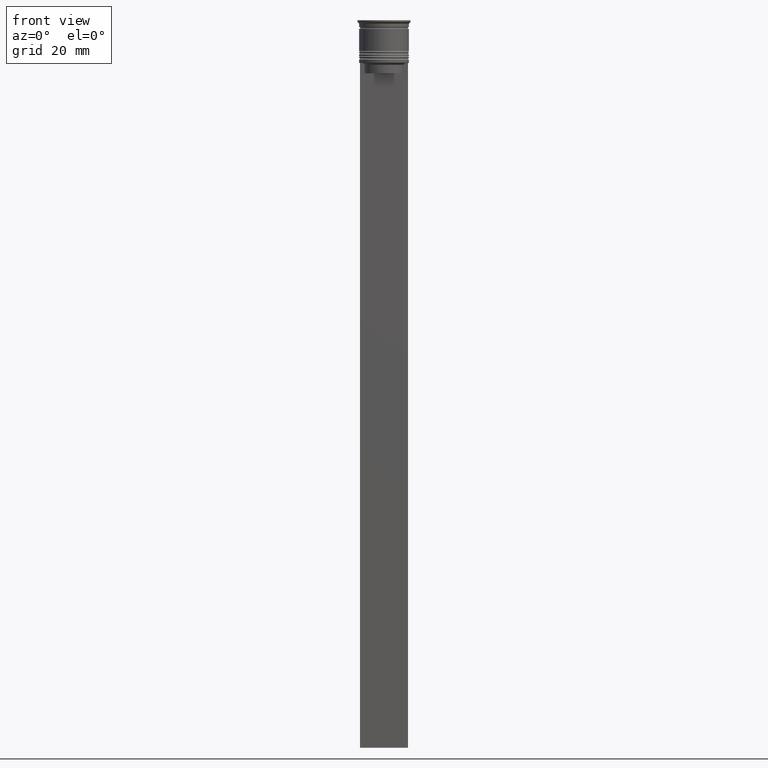
[diagram: clean part render]
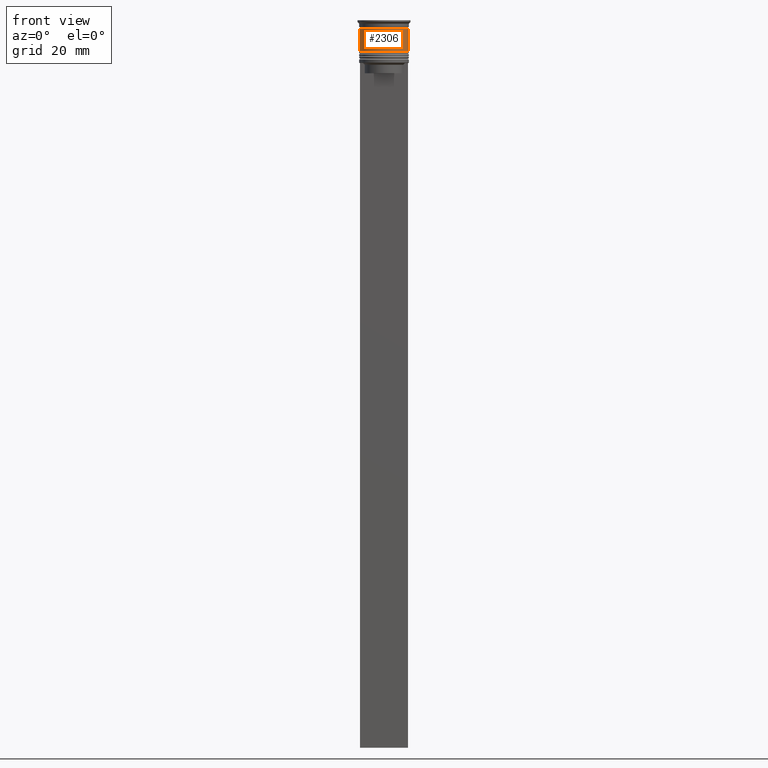
[diagram: same view with one face highlighted and labeled with its STEP entity id]
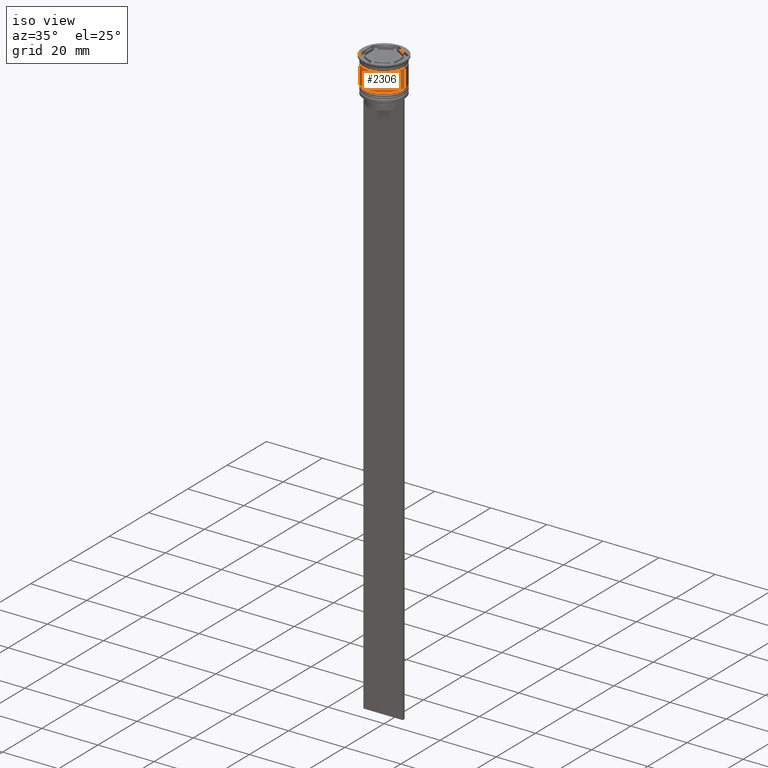
[diagram: same view with one face highlighted and labeled with its STEP entity id]
A machine part, front view. The second image highlights one B-rep face of the part: STEP entity #2306.
A second angle (iso view) of the same face is appended — the face is thin or edge-on in the first view.
In plain terms, the highlighted cylindrical surface (edge-blend (fillet) strip) has radius 7.25 mm, axis along (-0, -0, 1).
Its self-contained STEP definition (entity closure, byte-faithful):
#192 = DIRECTION ( 'NONE',  ( 1.000000000000000000, 0.000000000000000000, 0.000000000000000000 ) ) ;
#213 = CARTESIAN_POINT ( 'NONE',  ( 0.000000000000000000, 0.000000000000000000, -9.000000000000001776 ) ) ;
#221 = EDGE_LOOP ( 'NONE', ( #1280, #1837, #1320, #1021 ) ) ;
#258 = EDGE_CURVE ( 'NONE', #908, #832, #1329, .T. ) ;
#285 = LINE ( 'NONE', #1891, #1503 ) ;
#336 = VERTEX_POINT ( 'NONE', #427 ) ;
#388 = CARTESIAN_POINT ( 'NONE',  ( 0.000000000000000000, 0.000000000000000000, -2.500000000000000444 ) ) ;
#427 = CARTESIAN_POINT ( 'NONE',  ( 7.250000000000000888, 0.000000000000000000, -9.000000000000001776 ) ) ;
#459 = DIRECTION ( 'NONE',  ( -0.000000000000000000, -0.000000000000000000, 1.000000000000000000 ) ) ;
#504 = AXIS2_PLACEMENT_3D ( 'NONE', #1815, #1973, #192 ) ;
#605 = EDGE_CURVE ( 'NONE', #1378, #336, #911, .T. ) ;
#694 = CARTESIAN_POINT ( 'NONE',  ( -7.249999999999997335, 8.878689293818308102E-16, -2.500000000000000444 ) ) ;
#702 = CARTESIAN_POINT ( 'NONE',  ( -7.250000000000000888, 8.878689293818312046E-16, -9.000000000000001776 ) ) ;
#729 = AXIS2_PLACEMENT_3D ( 'NONE', #388, #1098, #882 ) ;
#812 = CARTESIAN_POINT ( 'NONE',  ( 7.249999999999999112, 0.000000000000000000, 0.000000000000000000 ) ) ;
#832 = VERTEX_POINT ( 'NONE', #1184 ) ;
#882 = DIRECTION ( 'NONE',  ( 1.000000000000000000, 0.000000000000000000, 0.000000000000000000 ) ) ;
#908 = VERTEX_POINT ( 'NONE', #694 ) ;
#911 = CIRCLE ( 'NONE', #1637, 7.250000000000000888 ) ;
#1021 = ORIENTED_EDGE ( 'NONE', *, *, #258, .F. ) ;
#1098 = DIRECTION ( 'NONE',  ( -0.000000000000000000, -0.000000000000000000, 1.000000000000000000 ) ) ;
#1184 = CARTESIAN_POINT ( 'NONE',  ( 7.249999999999997335, 0.000000000000000000, -2.500000000000000444 ) ) ;
#1239 = FACE_OUTER_BOUND ( 'NONE', #221, .T. ) ;
#1280 = ORIENTED_EDGE ( 'NONE', *, *, #1733, .F. ) ;
#1312 = DIRECTION ( 'NONE',  ( 1.000000000000000000, 0.000000000000000000, 0.000000000000000000 ) ) ;
#1320 = ORIENTED_EDGE ( 'NONE', *, *, #1714, .T. ) ;
#1329 = CIRCLE ( 'NONE', #729, 7.249999999999997335 ) ;
#1378 = VERTEX_POINT ( 'NONE', #702 ) ;
#1503 = VECTOR ( 'NONE', #459, 1000.000000000000000 ) ;
#1616 = VECTOR ( 'NONE', #2244, 1000.000000000000000 ) ;
#1637 = AXIS2_PLACEMENT_3D ( 'NONE', #213, #2223, #1312 ) ;
#1714 = EDGE_CURVE ( 'NONE', #336, #832, #2273, .T. ) ;
#1733 = EDGE_CURVE ( 'NONE', #1378, #908, #285, .T. ) ;
#1815 = CARTESIAN_POINT ( 'NONE',  ( 0.000000000000000000, 0.000000000000000000, 0.000000000000000000 ) ) ;
#1837 = ORIENTED_EDGE ( 'NONE', *, *, #605, .T. ) ;
#1891 = CARTESIAN_POINT ( 'NONE',  ( -7.249999999999999112, 8.878689293818310074E-16, 0.000000000000000000 ) ) ;
#1973 = DIRECTION ( 'NONE',  ( -0.000000000000000000, -0.000000000000000000, 1.000000000000000000 ) ) ;
#2139 = CYLINDRICAL_SURFACE ( 'NONE', #504, 7.249999999999999112 ) ;
#2223 = DIRECTION ( 'NONE',  ( -0.000000000000000000, -0.000000000000000000, 1.000000000000000000 ) ) ;
#2244 = DIRECTION ( 'NONE',  ( -0.000000000000000000, -0.000000000000000000, 1.000000000000000000 ) ) ;
#2273 = LINE ( 'NONE', #812, #1616 ) ;
#2306 = ADVANCED_FACE ( 'NONE', ( #1239 ), #2139, .T. ) ;